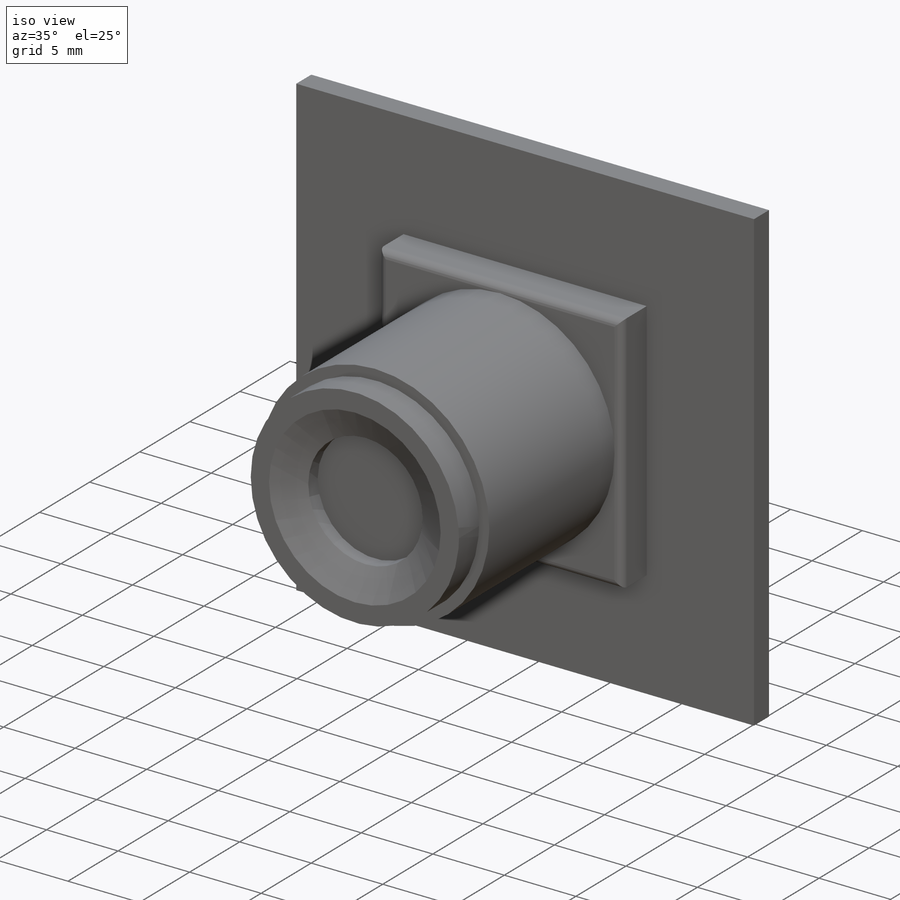
[diagram: iso view]
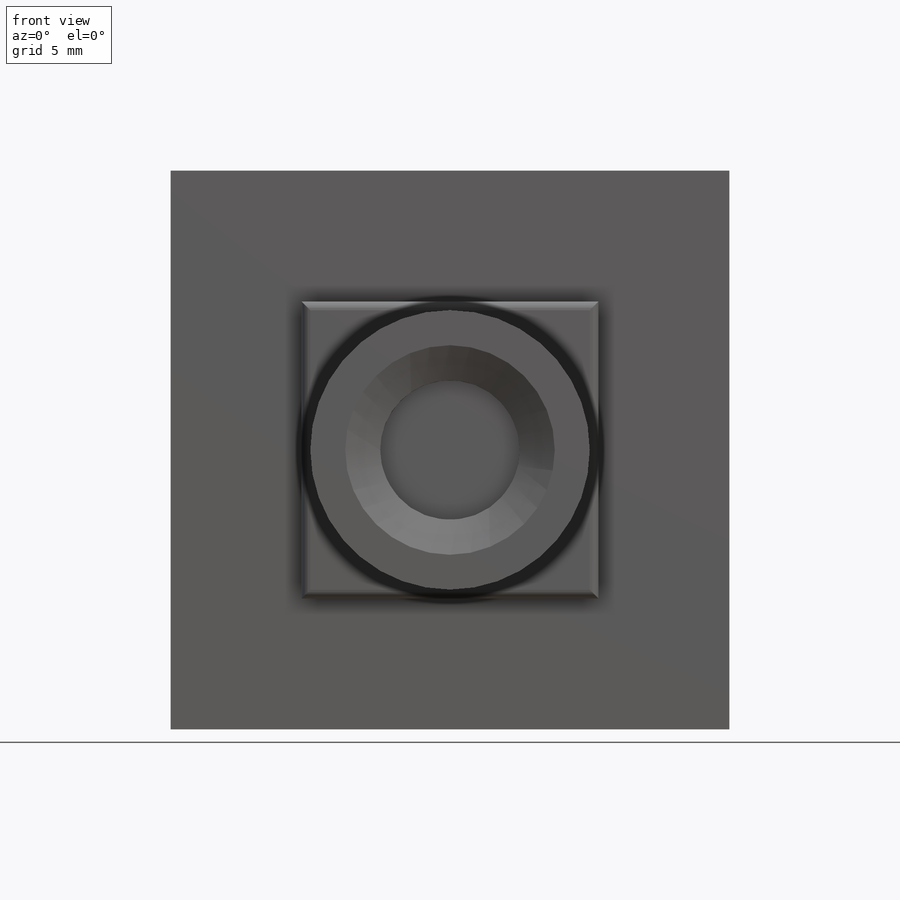
[diagram: front view]
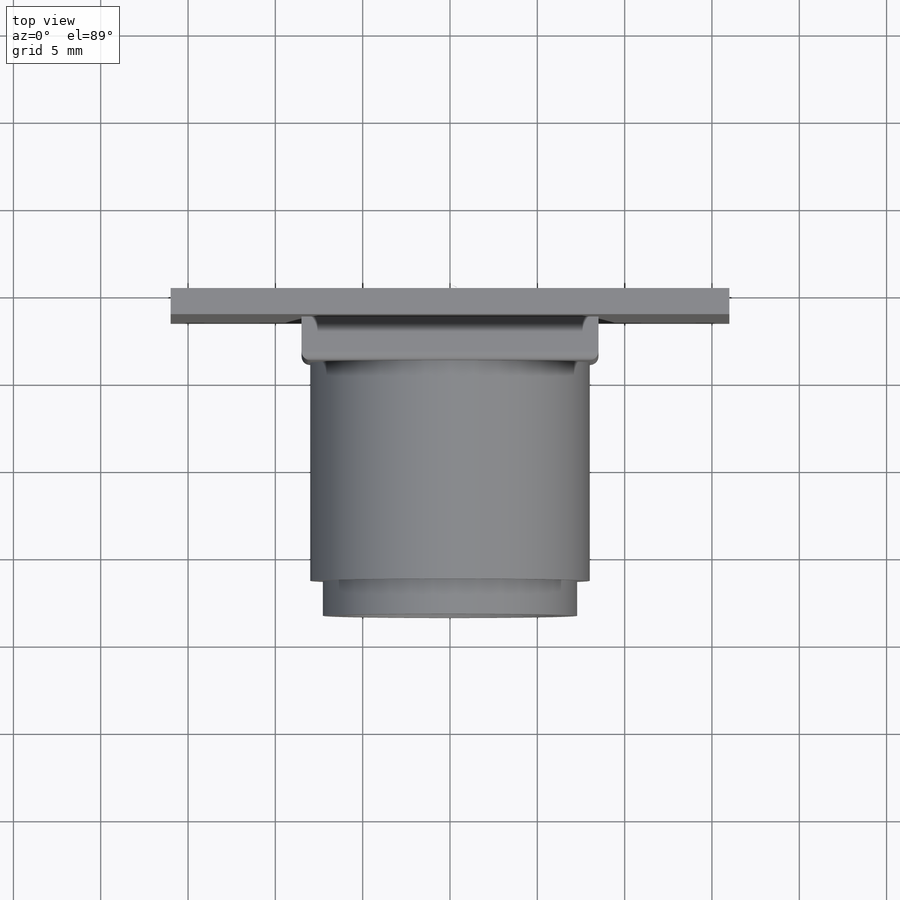
[diagram: top view]
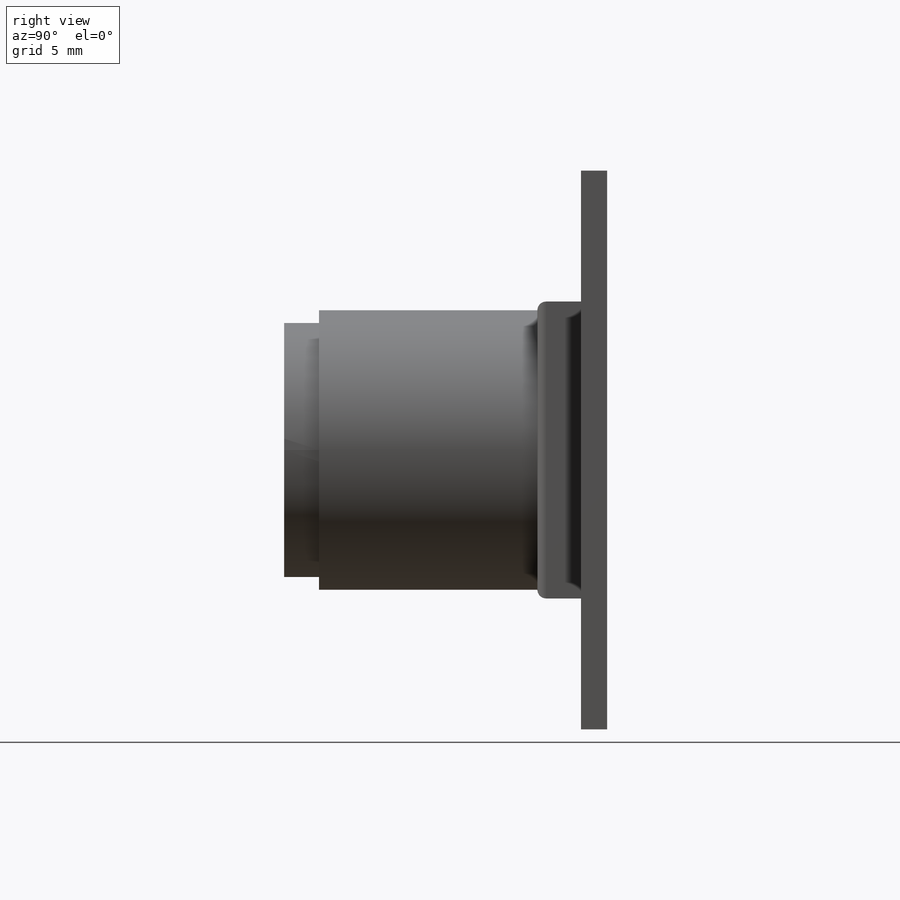
[diagram: right view]
SOLIDWORKS PART (.sldprt)
format: sldprt  version: not decoded by parser v0  size: 183,808 bytes
history: native  units: mm
features: sketch x5, extrude x4, material x1, cut_extrude x1, chamfer x1, fillet x1 (+12 scaffold rows collapsed)
feature tree (25):
  scaffold x12  (default folders/planes/origin — collapsed)
  material  "ABS"
  sketch  "Sketch1"  dims[D1=32.0mm D2=32.0mm]
  extrude  "Boss-Extrude1"  Depth=1.5mm
  sketch  "Sketch3"  dims[D1=17.0mm]
  extrude  "Boss-Extrude2"  Depth=2.5mm
  sketch  "Sketch4"  dims[D1=16.0mm]
  extrude  "Boss-Extrude3"  Depth=12.5mm
  sketch  "Sketch5"
  extrude  "Boss-Extrude4"  Depth=2mm
  sketch  "Sketch6"  dims[D1=8.0mm]
  cut_extrude  "Cut-Extrude1"  Depth=2mm
  chamfer  "Chamfer1"  Distance=2mm Angle=28deg
  fillet  "Fillet2"  Radius=0.5mm
decode coverage: 11 of 12 modeling features carry decoded parameters
note: suppression state not decoded; provenance and decode notes live in map.json
